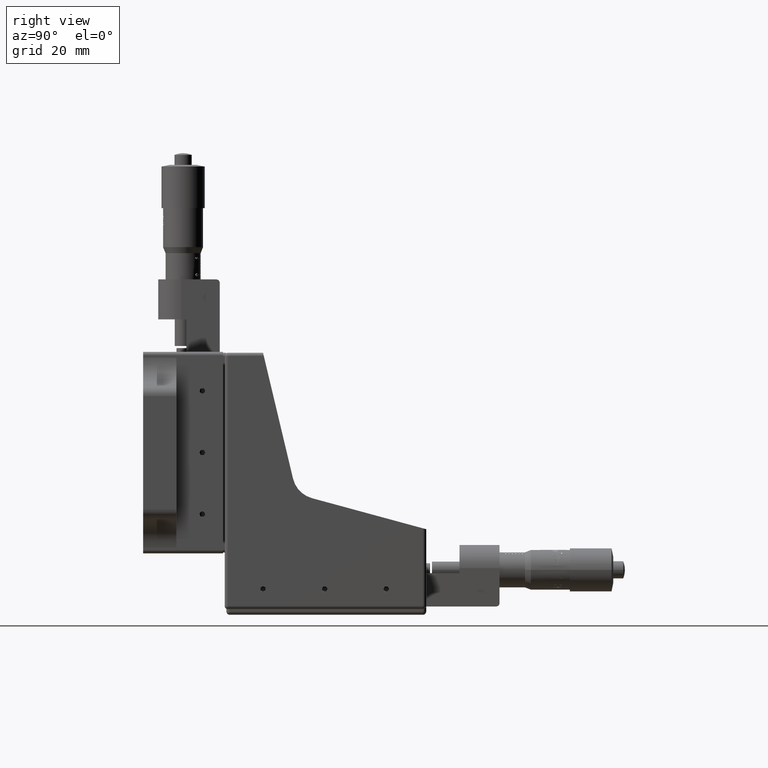
[diagram: clean part render]
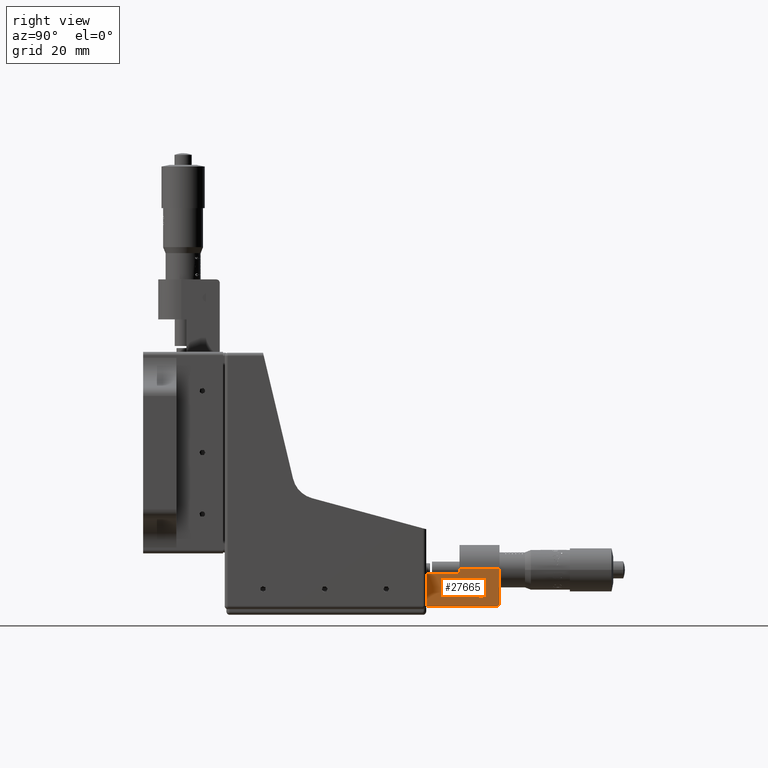
[diagram: same view with one face highlighted and labeled with its STEP entity id]
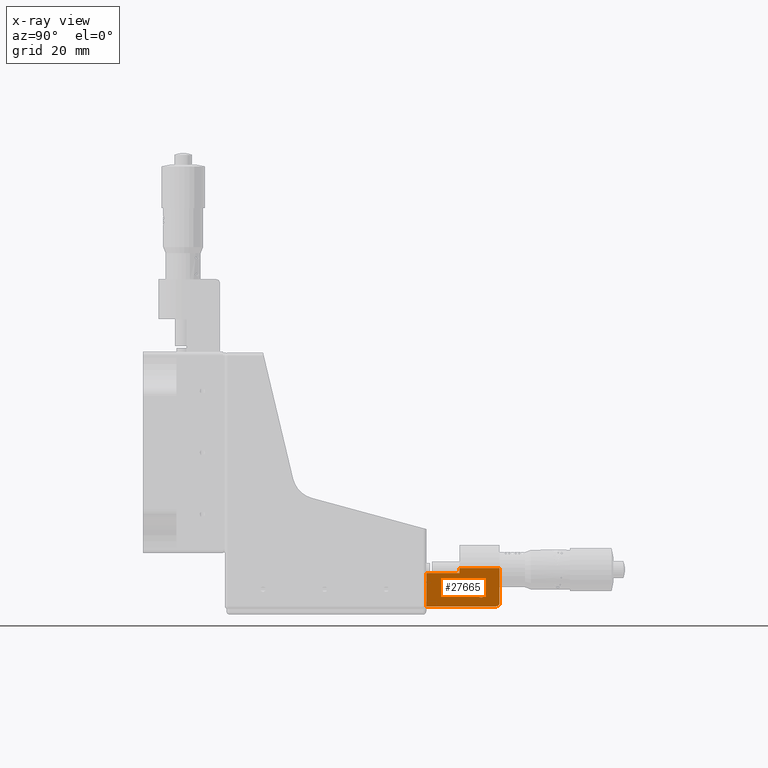
[diagram: x-ray of the same camera — body ghosted, the highlighted face saturated]
A machine part, right view. The second image highlights one B-rep face of the part: STEP entity #27665.
The next image is the same camera in x-ray: the body ghosted, the highlighted face saturated — about 0% of this face is hidden behind the body in this view.
In plain terms, the highlighted planar face has unit normal (-1, -0, 0).
Its self-contained STEP definition (entity closure, byte-faithful):
#1044 = VERTEX_POINT ( 'NONE', #23423 ) ;
#1762 = CARTESIAN_POINT ( 'NONE',  ( 9.290640787819794966, 85.88479336248714446, -40.55053537570062616 ) ) ;
#3363 = VERTEX_POINT ( 'NONE', #17471 ) ;
#3544 = LINE ( 'NONE', #32085, #8696 ) ;
#3590 = VERTEX_POINT ( 'NONE', #13922 ) ;
#4248 = VERTEX_POINT ( 'NONE', #18393 ) ;
#4432 = CARTESIAN_POINT ( 'NONE',  ( 9.290640787819794966, 86.88479336248714446, -30.05053537570063327 ) ) ;
#5132 = LINE ( 'NONE', #33893, #17252 ) ;
#6744 = AXIS2_PLACEMENT_3D ( 'NONE', #30305, #29851, #29619 ) ;
#7249 = DIRECTION ( 'NONE',  ( 0.000000000000000000, 1.000000000000000000, 0.000000000000000000 ) ) ;
#8164 = VECTOR ( 'NONE', #16854, 1000.000000000000000 ) ;
#8648 = EDGE_LOOP ( 'NONE', ( #26578, #37921 ) ) ;
#8696 = VECTOR ( 'NONE', #9646, 1000.000000000000000 ) ;
#8809 = FACE_BOUND ( 'NONE', #8648, .T. ) ;
#9338 = DIRECTION ( 'NONE',  ( 1.387778780781446169E-16, -1.000000000000000000, -7.788471400556193991E-17 ) ) ;
#9405 = VERTEX_POINT ( 'NONE', #10395 ) ;
#9559 = CARTESIAN_POINT ( 'NONE',  ( 9.290640787819798518, 64.88479336248714446, -30.05053537570063327 ) ) ;
#9646 = DIRECTION ( 'NONE',  ( -4.857225732735059864E-16, 1.000000000000000000, 7.788471400556200154E-17 ) ) ;
#9831 = EDGE_CURVE ( 'NONE', #14126, #3590, #3544, .T. ) ;
#10395 = CARTESIAN_POINT ( 'NONE',  ( 9.290640787819796742, 64.88479336248714446, -41.55053537570063327 ) ) ;
#10709 = CARTESIAN_POINT ( 'NONE',  ( 9.290640787819796742, 82.63479336248713025, -37.65053537570062048 ) ) ;
#10854 = ORIENTED_EDGE ( 'NONE', *, *, #32195, .T. ) ;
#11012 = CIRCLE ( 'NONE', #42370, 1.249999999999987121 ) ;
#11224 = CARTESIAN_POINT ( 'NONE',  ( 9.290640787819796742, 81.38479336248714446, -37.65053537570062048 ) ) ;
#11434 = CARTESIAN_POINT ( 'NONE',  ( 9.290640787819794966, 86.88479336248714446, -30.05053537570063327 ) ) ;
#11672 = DIRECTION ( 'NONE',  ( 1.000000000000000000, 1.387778780781446415E-16, -1.873501354054950676E-16 ) ) ;
#12076 = ORIENTED_EDGE ( 'NONE', *, *, #26327, .F. ) ;
#12119 = ORIENTED_EDGE ( 'NONE', *, *, #45609, .T. ) ;
#12207 = CIRCLE ( 'NONE', #38366, 1.000000000000000888 ) ;
#12381 = LINE ( 'NONE', #4432, #17077 ) ;
#13695 = ORIENTED_EDGE ( 'NONE', *, *, #36067, .T. ) ;
#13711 = CARTESIAN_POINT ( 'NONE',  ( 9.290640787819796742, 81.38479336248714446, -37.65053537570062048 ) ) ;
#13922 = CARTESIAN_POINT ( 'NONE',  ( 9.290640787819793189, 74.88479336248714446, -31.55053537570066169 ) ) ;
#14126 = VERTEX_POINT ( 'NONE', #42205 ) ;
#14177 = DIRECTION ( 'NONE',  ( 1.000000000000000000, 1.387778780781446415E-16, -1.873501354054950676E-16 ) ) ;
#14926 = VERTEX_POINT ( 'NONE', #11434 ) ;
#16037 = DIRECTION ( 'NONE',  ( 1.000000000000000000, 1.387778780781446415E-16, -1.873501354054950676E-16 ) ) ;
#16114 = DIRECTION ( 'NONE',  ( -1.873501354054950676E-16, 7.788471400556191526E-17, -1.000000000000000000 ) ) ;
#16854 = DIRECTION ( 'NONE',  ( -2.269018306577664074E-15, 7.788471400556163176E-17, -1.000000000000000000 ) ) ;
#17077 = VECTOR ( 'NONE', #16114, 1000.000000000000000 ) ;
#17252 = VECTOR ( 'NONE', #19141, 1000.000000000000000 ) ;
#17471 = CARTESIAN_POINT ( 'NONE',  ( 9.290640787819796742, 80.13479336248715867, -37.65053537570062048 ) ) ;
#18393 = CARTESIAN_POINT ( 'NONE',  ( 9.290640787819794966, 85.88479336248714446, -41.55053537570063327 ) ) ;
#19141 = DIRECTION ( 'NONE',  ( 1.387778780781446169E-16, -1.000000000000000000, -7.788471400556193991E-17 ) ) ;
#19514 = CIRCLE ( 'NONE', #20250, 1.249999999999987121 ) ;
#20035 = ORIENTED_EDGE ( 'NONE', *, *, #28827, .T. ) ;
#20250 = AXIS2_PLACEMENT_3D ( 'NONE', #13711, #14177, #28419 ) ;
#20506 = EDGE_CURVE ( 'NONE', #36794, #3363, #19514, .T. ) ;
#23423 = CARTESIAN_POINT ( 'NONE',  ( 9.290640787819793189, 86.88479336248714446, -40.55053537570062616 ) ) ;
#23804 = DIRECTION ( 'NONE',  ( -1.873501354054950676E-16, 7.788471400556191526E-17, -1.000000000000000000 ) ) ;
#26121 = FACE_OUTER_BOUND ( 'NONE', #32361, .T. ) ;
#26327 = EDGE_CURVE ( 'NONE', #14926, #1044, #12381, .T. ) ;
#26578 = ORIENTED_EDGE ( 'NONE', *, *, #20506, .F. ) ;
#27506 = VECTOR ( 'NONE', #9338, 1000.000000000000000 ) ;
#27665 = ADVANCED_FACE ( 'NONE', ( #26121, #8809 ), #44356, .F. ) ;
#27835 = LINE ( 'NONE', #38379, #8164 ) ;
#28303 = VERTEX_POINT ( 'NONE', #40533 ) ;
#28419 = DIRECTION ( 'NONE',  ( 0.000000000000000000, 1.000000000000000000, 0.000000000000000000 ) ) ;
#28827 = EDGE_CURVE ( 'NONE', #28303, #3590, #27835, .T. ) ;
#29233 = LINE ( 'NONE', #33435, #27506 ) ;
#29288 = VECTOR ( 'NONE', #23804, 1000.000000000000000 ) ;
#29619 = DIRECTION ( 'NONE',  ( 1.387778780781446169E-16, -1.000000000000000000, -7.788471400556193991E-17 ) ) ;
#29851 = DIRECTION ( 'NONE',  ( -1.000000000000000000, -1.387778780781446415E-16, 1.873501354054950676E-16 ) ) ;
#30305 = CARTESIAN_POINT ( 'NONE',  ( 9.290640787819794966, 86.88479336248714446, -30.05053537570063327 ) ) ;
#32085 = CARTESIAN_POINT ( 'NONE',  ( 9.290640787819793189, 74.88479336248714446, -31.55053537570066169 ) ) ;
#32195 = EDGE_CURVE ( 'NONE', #14126, #9405, #41592, .T. ) ;
#32361 = EDGE_LOOP ( 'NONE', ( #42773, #13695, #12076, #12119, #20035, #33736, #10854 ) ) ;
#33099 = EDGE_CURVE ( 'NONE', #4248, #9405, #5132, .T. ) ;
#33435 = CARTESIAN_POINT ( 'NONE',  ( 9.290640787819794966, 86.88479336248714446, -30.05053537570063327 ) ) ;
#33736 = ORIENTED_EDGE ( 'NONE', *, *, #9831, .F. ) ;
#33893 = CARTESIAN_POINT ( 'NONE',  ( 9.290640787819793189, 86.88479336248714446, -41.55053537570063327 ) ) ;
#34046 = DIRECTION ( 'NONE',  ( 0.000000000000000000, -1.000000000000000000, 0.000000000000000000 ) ) ;
#36067 = EDGE_CURVE ( 'NONE', #4248, #1044, #12207, .T. ) ;
#36794 = VERTEX_POINT ( 'NONE', #10709 ) ;
#37921 = ORIENTED_EDGE ( 'NONE', *, *, #42414, .F. ) ;
#38366 = AXIS2_PLACEMENT_3D ( 'NONE', #1762, #16037, #34046 ) ;
#38379 = CARTESIAN_POINT ( 'NONE',  ( 9.290640787819839375, 74.88479336248714446, -10.55053537570065814 ) ) ;
#40533 = CARTESIAN_POINT ( 'NONE',  ( 9.290640787819794966, 74.88479336248714446, -30.05053537570062616 ) ) ;
#41592 = LINE ( 'NONE', #9559, #29288 ) ;
#42205 = CARTESIAN_POINT ( 'NONE',  ( 9.290640787819798518, 64.88479336248714446, -31.55053537570066169 ) ) ;
#42370 = AXIS2_PLACEMENT_3D ( 'NONE', #11224, #11672, #7249 ) ;
#42414 = EDGE_CURVE ( 'NONE', #3363, #36794, #11012, .T. ) ;
#42773 = ORIENTED_EDGE ( 'NONE', *, *, #33099, .F. ) ;
#44356 = PLANE ( 'NONE',  #6744 ) ;
#45609 = EDGE_CURVE ( 'NONE', #14926, #28303, #29233, .T. ) ;